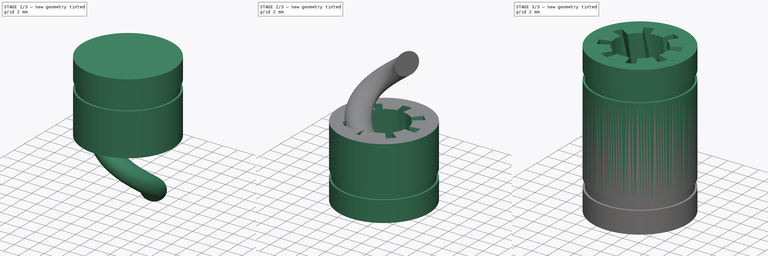
[diagram: build sequence overview — one tinted view per stage of 3, left to right]
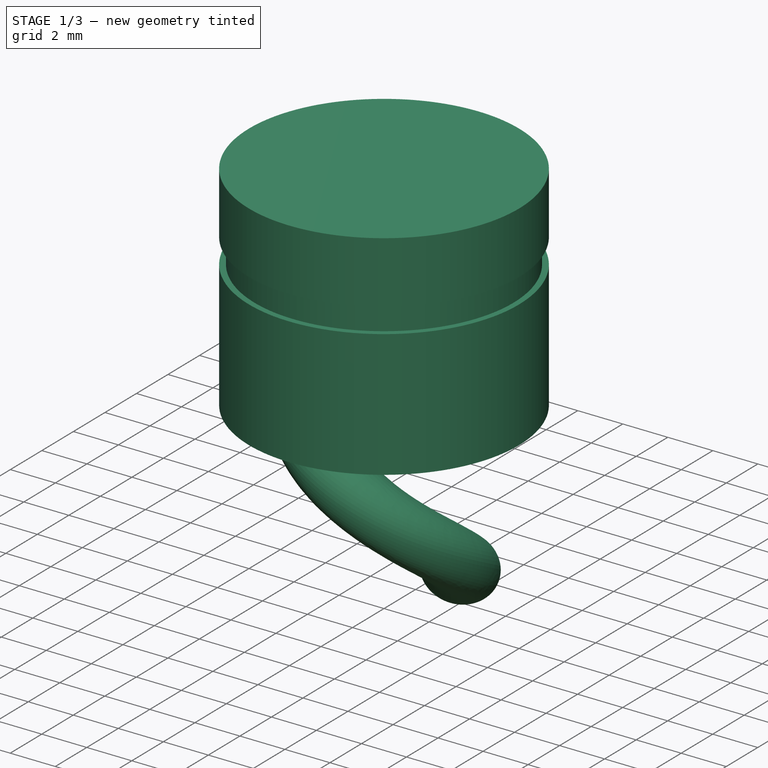
[diagram: stage 1 of 3 — iso view after this stage's code; geometry added in this stage tinted green]
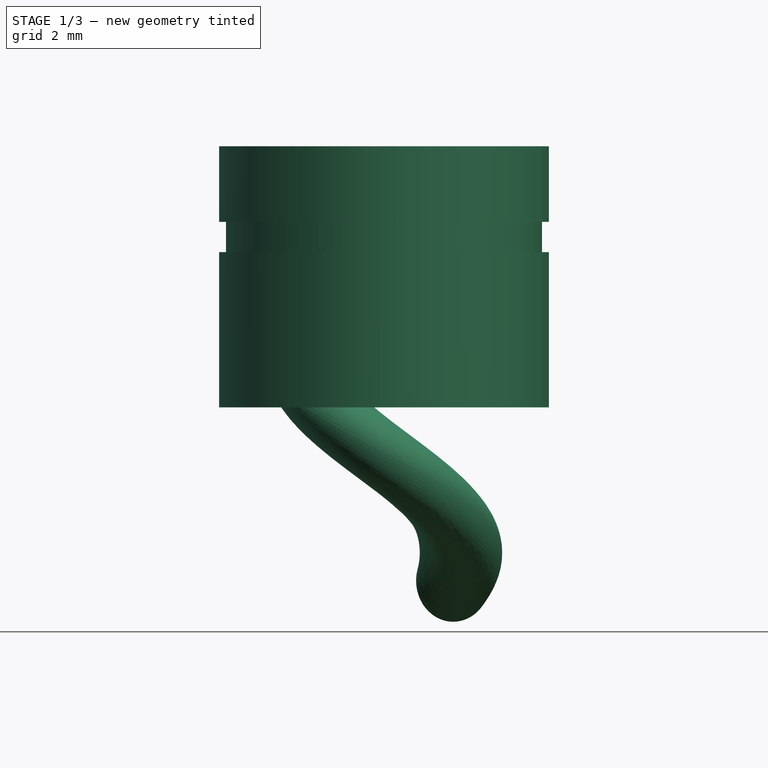
[diagram: stage 1 of 3 — front view after this stage's code; geometry added in this stage tinted green]
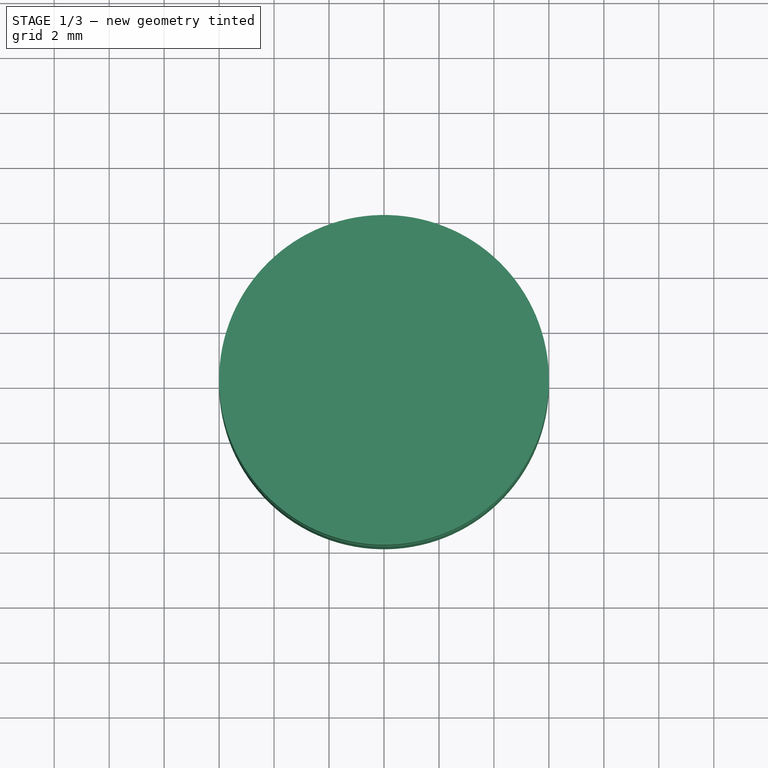
[diagram: stage 1 of 3 — top view after this stage's code; geometry added in this stage tinted green]
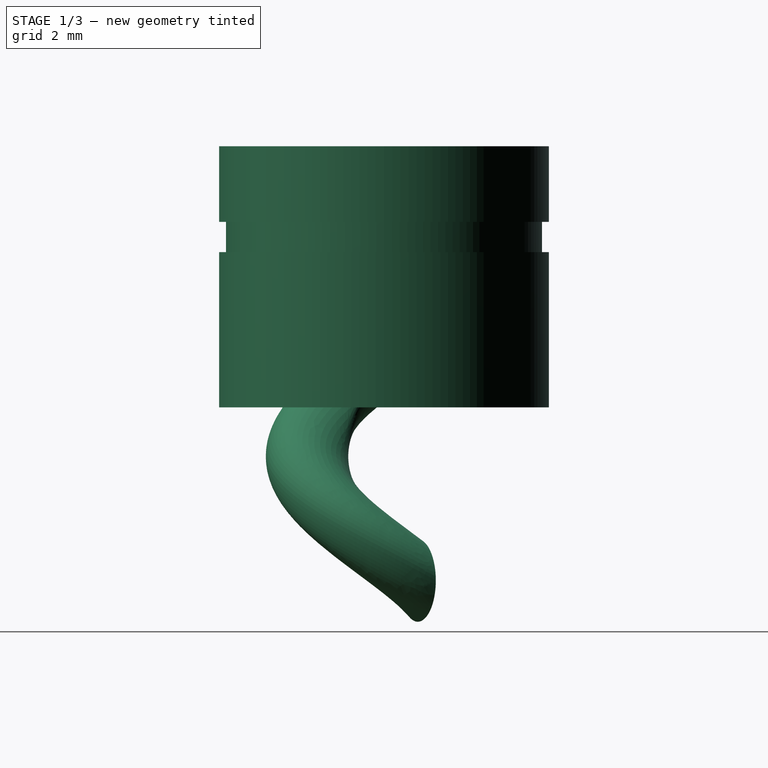
[diagram: stage 1 of 3 — right view after this stage's code; geometry added in this stage tinted green]
FCSTD DOCUMENT  (FreeCAD 0.18R15441 (Git))
Label: LM6UU_IGUS_ABS
License: All rights reserved
LicenseURL: http://en.wikipedia.org/wiki/All_rights_reserved
objects: PartDesign::Plane×6, Part::Part2DObjectPython×5, Sketcher::SketchObject×4, PartDesign::Pad×1, PartDesign::Pocket×1, Part::Helix×1, PartDesign::SubtractiveLoft×1, PartDesign::Body×1, PartDesign::FeatureBase×1, Part::MultiFuse×1, Part::Sweep×1, Part::Cut×1, App::Part×1, Part::FeaturePython×1
note: 28 computed .brp shape members not serialized (recipe doc carries the construction recipe); baked Part::Feature solids carry a one-line shape summary decoded from their .brp

FEATURE [Sketcher::SketchObject] Sketch  label="BaseSketch"
  MapMode = 5
  Support = -> [XY_Plane001]
  sketch-geometry (1):
    g0: Circle CenterX=0 CenterY=0 CenterZ=0 NormalX=0 NormalY=0 NormalZ=1 AngleXU=0 Radius=6
  constraints (2):
    c: Coincident(g0,g-1)
    c: Radius(g0) = 6
FEATURE [PartDesign::Pad] Pad  label="BasePad"
  Length = 9.5
  Length2 = 100
  Profile = -> Sketch
  Type = 0
FEATURE [PartDesign::Plane] DatumPlane  label="ClipPlane"
  AttachmentOffset = pos=(0,0,6.75) rot=(0,0,1;0rad)
  Length = 24
  MapMode = 5
  Placement = pos=(0,0,6.75) rot=(0,0,1;0rad)
  ResizeMode = 0
  Support = -> [XY_Plane001]
  Width = 24
FEATURE [Sketcher::SketchObject] Sketch001  label="ClipSketch"
  MapMode = 5
  Placement = pos=(0,0,6.75) rot=(0,0,1;0rad)
  Support = -> [DatumPlane]
  sketch-geometry (2):
    g0: Circle CenterX=0 CenterY=0 CenterZ=0 NormalX=0 NormalY=0 NormalZ=1 AngleXU=0 Radius=5.75
    g1: Circle CenterX=0 CenterY=0 CenterZ=0 NormalX=0 NormalY=0 NormalZ=1 AngleXU=0 Radius=10
  constraints (4):
    c: Coincident(g0,g-1)
    c: Coincident(g1,g0)
    c: Radius(g1) = 10
    c: Radius(g0) = 5.75
FEATURE [PartDesign::Pocket] Pocket  label="ClipPocket"
  BaseFeature = -> Pad
  Length = 1.1
  Length2 = 100
  Profile = -> Sketch001
  Type = 0
FEATURE [Part::Sweep] Sweep  label="AntiJamCutSweep"
  Frenet = true
  Sections = -> [Sketch003]
  Solid = true
  Spine = -> Helix [Edge1]
  Transition = 1
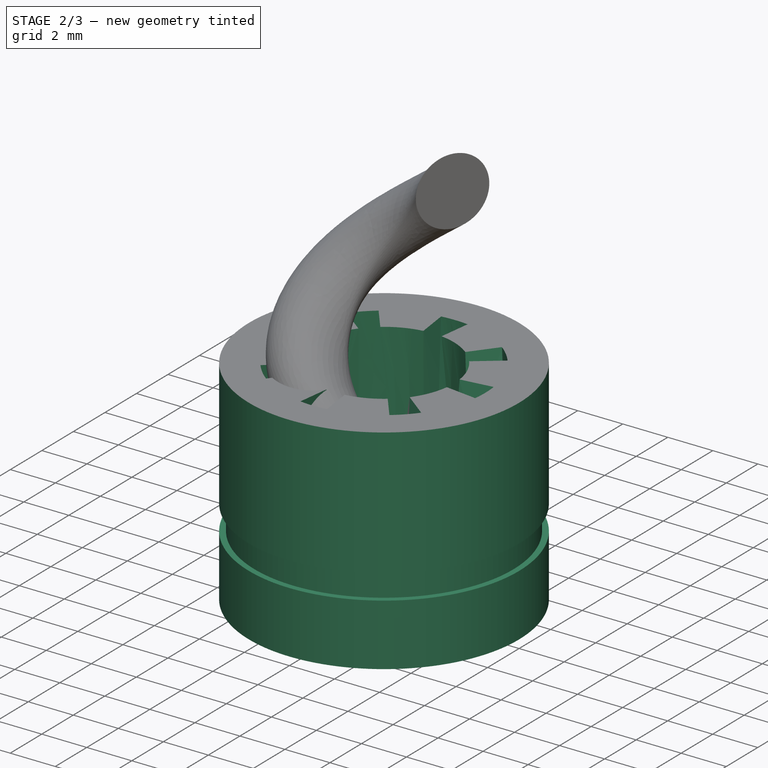
[diagram: stage 2 of 3 — iso view after this stage's code; geometry added in this stage tinted green]
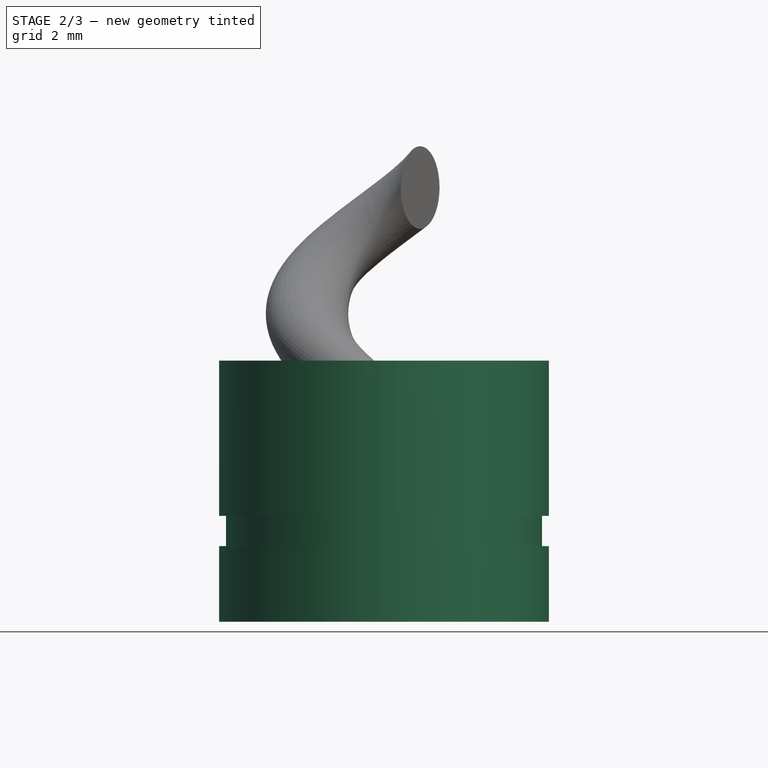
[diagram: stage 2 of 3 — front view after this stage's code; geometry added in this stage tinted green]
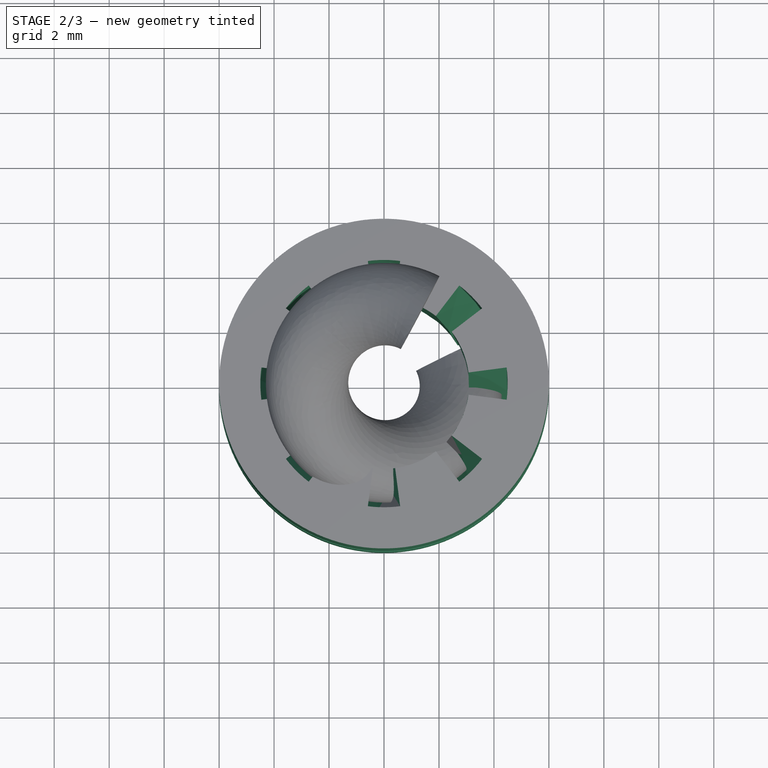
[diagram: stage 2 of 3 — top view after this stage's code; geometry added in this stage tinted green]
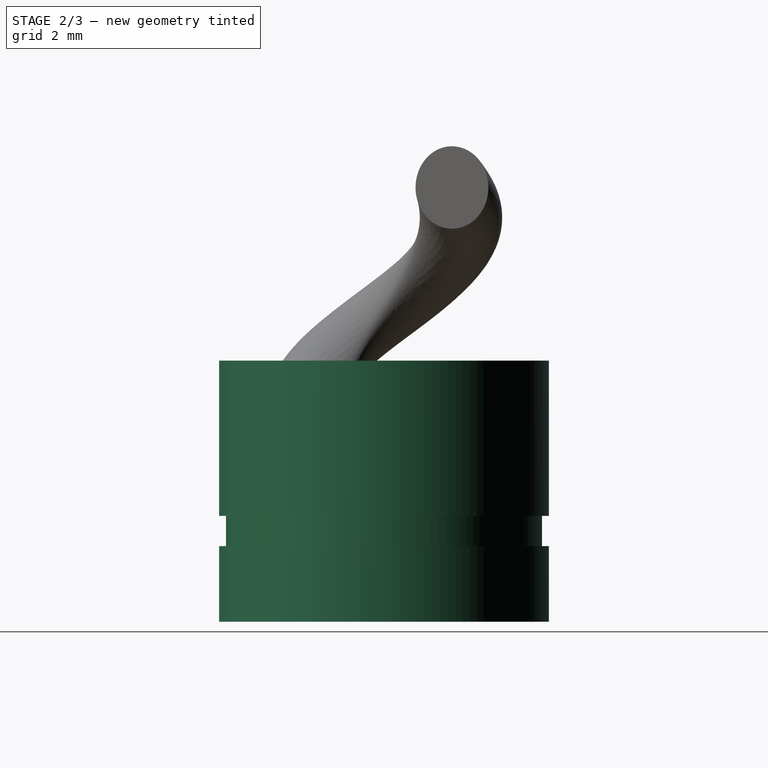
[diagram: stage 2 of 3 — right view after this stage's code; geometry added in this stage tinted green]
FEATURE [Sketcher::SketchObject] Sketch002  label="RodClipSketch"
  MapMode = 5
  Support = -> [XY_Plane001]
  sketch-geometry (49):
    g0: Circle [constr] CenterX=0 CenterY=0 CenterZ=0 NormalX=0 NormalY=0 NormalZ=1 AngleXU=0 Radius=3.1
    g1: ArcOfCircle CenterX=0 CenterY=-5e-12 CenterZ=0 NormalX=0 NormalY=0 NormalZ=1 AngleXU=0 Radius=3.1 StartAngle=1.7017 EndAngle=2.22529
    g2: ArcOfCircle CenterX=0 CenterY=-5e-12 CenterZ=0 NormalX=0 NormalY=0 NormalZ=1 AngleXU=0 Radius=3.1 StartAngle=0.916298 EndAngle=1.4399
    g3: ArcOfCircle CenterX=0 CenterY=-5e-12 CenterZ=0 NormalX=0 NormalY=0 NormalZ=1 AngleXU=0 Radius=3.1 StartAngle=2.48709 EndAngle=3.01069
    g4: ArcOfCircle CenterX=0 CenterY=-5e-12 CenterZ=0 NormalX=0 NormalY=0 NormalZ=1 AngleXU=0 Radius=3.1 StartAngle=0.1309 EndAngle=0.654498
    g5: ArcOfCircle CenterX=0 CenterY=-5e-12 CenterZ=0 NormalX=0 NormalY=0 NormalZ=1 AngleXU=0 Radius=3.1 StartAngle=5.62869 EndAngle=6.15229
    g6: ArcOfCircle CenterX=0 CenterY=-5e-12 CenterZ=0 NormalX=0 NormalY=0 NormalZ=1 AngleXU=0 Radius=3.1 StartAngle=4.84329 EndAngle=5.36689
    g7: ArcOfCircle CenterX=0 CenterY=-5e-12 CenterZ=0 NormalX=0 NormalY=0 NormalZ=1 AngleXU=0 Radius=3.1 StartAngle=4.05789 EndAngle=4.58149
    g8: ArcOfCircle CenterX=0 CenterY=-5e-12 CenterZ=0 NormalX=0 NormalY=0 NormalZ=1 AngleXU=0 Radius=3.1 StartAngle=3.27249 EndAngle=3.79609
    g9: LineSegment [constr] StartX=-0.404631 StartY=3.07348 StartZ=0 EndX=-1e-16 EndY=-5e-12 EndZ=0
    g10: LineSegment [constr] StartX=0.404631 StartY=3.07348 StartZ=0 EndX=1e-16 EndY=-5e-12 EndZ=0
    g11: LineSegment [constr] StartX=1.88716 StartY=2.4594 StartZ=0 EndX=0 EndY=-5e-12 EndZ=0
    g12: LineSegment [constr] StartX=2.4594 StartY=1.88716 StartZ=0 EndX=0 EndY=-5e-12 EndZ=0
    g13: LineSegment [constr] StartX=3.07348 StartY=0.404631 StartZ=0 EndX=0 EndY=-5e-12 EndZ=0
    g14: LineSegment [constr] StartX=3.07348 StartY=-0.404631 StartZ=0 EndX=0 EndY=-5e-12 EndZ=0
    g15: LineSegment [constr] StartX=2.4594 StartY=-1.88716 StartZ=0 EndX=0 EndY=-5e-12 EndZ=0
    g16: LineSegment [constr] StartX=1.88716 StartY=-2.4594 StartZ=0 EndX=-2e-16 EndY=-5e-12 EndZ=0
    g17: LineSegment [constr] StartX=0.404631 StartY=-3.07348 StartZ=0 EndX=0 EndY=-5e-12 EndZ=0
    g18: LineSegment [constr] StartX=-0.404631 StartY=-3.07348 StartZ=0 EndX=-1e-16 EndY=-5e-12 EndZ=0
    g19: LineSegment [constr] StartX=-1.88716 StartY=-2.4594 StartZ=0 EndX=2e-16 EndY=-5e-12 EndZ=0
    g20: LineSegment [constr] StartX=-2.4594 StartY=-1.88716 StartZ=0 EndX=0 EndY=-5.0002e-12 EndZ=0
    g21: LineSegment [constr] StartX=-3.07348 StartY=-0.404631 StartZ=0 EndX=0 EndY=-5e-12 EndZ=0
    g22: LineSegment [constr] StartX=-3.07348 StartY=0.404631 StartZ=0 EndX=0 EndY=-5e-12 EndZ=0
    g23: LineSegment [constr] StartX=-2.4594 StartY=1.88716 StartZ=0 EndX=0 EndY=-5e-12 EndZ=0
    g24: LineSegment [constr] StartX=-1.88716 StartY=2.4594 StartZ=0 EndX=0 EndY=-5e-12 EndZ=0
    g25: LineSegment StartX=-0.404631 StartY=3.07348 StartZ=0 EndX=-0.587368 EndY=4.4615 EndZ=0
    g26: LineSegment StartX=0.404631 StartY=3.07348 StartZ=0 EndX=0.587368 EndY=4.4615 EndZ=0
    g27: LineSegment StartX=1.88716 StartY=2.4594 StartZ=0 EndX=2.73943 EndY=3.57009 EndZ=0
    g28: LineSegment StartX=2.4594 StartY=1.88716 StartZ=0 EndX=3.57009 EndY=2.73943 EndZ=0
    g29: LineSegment StartX=3.07348 StartY=0.404631 StartZ=0 EndX=4.4615 EndY=0.587368 EndZ=0
    g30: LineSegment StartX=3.07348 StartY=-0.404631 StartZ=0 EndX=4.4615 EndY=-0.587368 EndZ=0
    g31: LineSegment StartX=2.4594 StartY=-1.88716 StartZ=0 EndX=3.57009 EndY=-2.73943 EndZ=0
    g32: LineSegment StartX=1.88716 StartY=-2.4594 StartZ=0 EndX=2.73943 EndY=-3.57009 EndZ=0
    g33: LineSegment StartX=0.404631 StartY=-3.07348 StartZ=0 EndX=0.587368 EndY=-4.4615 EndZ=0
    g34: LineSegment StartX=-0.404631 StartY=-3.07348 StartZ=0 EndX=-0.587368 EndY=-4.4615 EndZ=0
    g35: LineSegment StartX=-1.88716 StartY=-2.4594 StartZ=0 EndX=-2.73943 EndY=-3.57009 EndZ=0
    g36: LineSegment StartX=-2.4594 StartY=-1.88716 StartZ=0 EndX=-3.57009 EndY=-2.73943 EndZ=0
    g37: LineSegment StartX=-3.07348 StartY=-0.404631 StartZ=0 EndX=-4.4615 EndY=-0.587368 EndZ=0
    g38: LineSegment StartX=-3.07348 StartY=0.404631 StartZ=0 EndX=-4.4615 EndY=0.587368 EndZ=0
    g39: LineSegment StartX=-2.4594 StartY=1.88716 StartZ=0 EndX=-3.57009 EndY=2.73943 EndZ=0
    g40: LineSegment StartX=-1.88716 StartY=2.4594 StartZ=0 EndX=-2.73943 EndY=3.57009 EndZ=0
    g41: ArcOfCircle CenterX=0 CenterY=-5e-12 CenterZ=0 NormalX=0 NormalY=0 NormalZ=1 AngleXU=0 Radius=4.5 StartAngle=1.4399 EndAngle=1.7017
    g42: ArcOfCircle CenterX=0 CenterY=-5e-12 CenterZ=0 NormalX=0 NormalY=0 NormalZ=1 AngleXU=0 Radius=4.5 StartAngle=0.654498 EndAngle=0.916298
    g43: ArcOfCircle CenterX=0 CenterY=-5e-12 CenterZ=0 NormalX=0 NormalY=0 NormalZ=1 AngleXU=0 Radius=4.5 StartAngle=6.15229 EndAngle=6.41409
    g44: ArcOfCircle CenterX=0 CenterY=-5e-12 CenterZ=0 NormalX=0 NormalY=0 NormalZ=1 AngleXU=0 Radius=4.5 StartAngle=5.36689 EndAngle=5.62869
    g45: ArcOfCircle CenterX=0 CenterY=-5e-12 CenterZ=0 NormalX=0 NormalY=0 NormalZ=1 AngleXU=0 Radius=4.5 StartAngle=4.58149 EndAngle=4.84329
    g46: ArcOfCircle CenterX=0 CenterY=-5e-12 CenterZ=0 NormalX=0 NormalY=0 NormalZ=1 AngleXU=0 Radius=4.5 StartAngle=3.79609 EndAngle=4.05789
    g47: ArcOfCircle CenterX=0 CenterY=-5e-12 CenterZ=0 NormalX=0 NormalY=0 NormalZ=1 AngleXU=0 Radius=4.5 StartAngle=3.01069 EndAngle=3.27249
    g48: ArcOfCircle CenterX=0 CenterY=-5e-12 CenterZ=0 NormalX=0 NormalY=0 NormalZ=1 AngleXU=0 Radius=4.5 StartAngle=2.22529 EndAngle=2.48709
  constraints (123):
    c: Coincident(g0,g-1)
    c: Radius(g0) = 3.1
    c: PointOnObject(g1,g0)
    c: Coincident(g2,g1)
    c: Coincident(g3,g1)
    c: PointOnObject(g3,g0)
    c: Coincident(g4,g1)
    c: Coincident(g5,g1)
    c: Coincident(g6,g1)
    c: Coincident(g7,g1)
    c: Coincident(g8,g1)
    c: Coincident(g9,g1)
    c: Coincident(g9,g1)
    c: Coincident(g10,g2)
    c: Coincident(g10,g1)
    c: Coincident(g11,g2)
    c: Coincident(g11,g1)
    c: Coincident(g12,g4)
    c: Coincident(g12,g1)
    c: Coincident(g13,g4)
    c: Coincident(g13,g1)
    c: Coincident(g14,g5)
    c: Coincident(g14,g1)
    c: Coincident(g15,g5)
    c: Coincident(g15,g1)
    c: Coincident(g16,g6)
    c: Coincident(g16,g1)
    c: Coincident(g17,g6)
    c: Coincident(g17,g1)
    c: Coincident(g18,g7)
    c: Coincident(g18,g1)
    c: Coincident(g19,g7)
    c: Coincident(g19,g1)
    c: Coincident(g20,g8)
    c: Coincident(g20,g1)
    c: Coincident(g21,g8)
    c: Coincident(g21,g1)
    c: Coincident(g22,g3)
    c: Coincident(g22,g1)
    c: Coincident(g23,g3)
    c: Coincident(g23,g1)
    c: Coincident(g24,g1)
    c: Coincident(g24,g1)
    c: Coincident(g25,g1)
    c: Coincident(g26,g2)
    c: Coincident(g27,g2)
    c: Coincident(g28,g4)
    c: Coincident(g29,g4)
    c: Coincident(g30,g5)
    c: Coincident(g31,g5)
    c: Coincident(g32,g6)
    c: Coincident(g33,g6)
    c: Coincident(g34,g7)
    c: Coincident(g35,g7)
    c: Coincident(g36,g8)
    c: Coincident(g37,g8)
    c: Coincident(g38,g3)
    c: Coincident(g39,g3)
    c: Coincident(g40,g1)
    c: Parallel(g25,g9)
    c: Parallel(g26,g10)
    c: Parallel(g27,g11)
    c: Parallel(g28,g12)
    c: Parallel(g29,g13)
    c: Parallel(g30,g14)
    c: Parallel(g31,g15)
    c: Parallel(g32,g16)
    c: Parallel(g33,g17)
    c: Parallel(g34,g18)
    c: Parallel(g35,g19)
    c: Parallel(g36,g20)
    c: Parallel(g37,g21)
    c: Parallel(g38,g22)
    c: Parallel(g39,g23)
    c: Parallel(g40,g24)
    c: Symmetric(g2,g1,g-2)
    c: Symmetric(g1,g7,g-1)
    c: Symmetric(g2,g6,g-1)
    c: Symmetric(g2,g6,g-1)
    c: Symmetric(g1,g7,g-1)
    c: Symmetric(g2,g1,g-2)
    c: Symmetric(g4,g3,g-2)
    c: Symmetric(g3,g8,g-1)
    c: Symmetric(g4,g5,g-1)
    c: Symmetric(g4,g3,g-2)
    c: Symmetric(g3,g8,g-1)
    c: Symmetric(g5,g4,g-1)
    c: Coincident(g41,g1)
    c: Coincident(g41,g25)
    c: Coincident(g41,g26)
    c: Coincident(g42,g1)
    c: Coincident(g42,g27)
    c: Coincident(g42,g28)
    c: Coincident(g43,g1)
    c: Coincident(g43,g29)
    c: Coincident(g43,g30)
    c: Coincident(g44,g1)
    c: Coincident(g44,g31)
    c: Coincident(g44,g32)
    c: Coincident(g45,g1)
    c: Coincident(g45,g33)
    c: Coincident(g45,g34)
    c: Coincident(g46,g1)
    c: Coincident(g46,g35)
    c: Coincident(g46,g36)
    c: Coincident(g47,g1)
    c: Coincident(g47,g37)
    c: Coincident(g47,g38)
    c: Coincident(g48,g1)
    c: Coincident(g48,g39)
    c: Coincident(g48,g40)
    c: Equal(g40,g26)
    c: Equal(g26,g28)
    c: Equal(g28,g30)
    c: Equal(g30,g32)
    c: Equal(g32,g34)
    c: Equal(g34,g36)
    c: Equal(g36,g38)
    c: Radius(g42) = 4.5
    c: Angle(g42) = 0.261799
    c: Angle(g41) = 0.261799
    c: Angle(g2) = 0.523599
    c: Angle(g4) = 0.523599
FEATURE [Part::Helix] Helix  label="AntiJamHelixPath"
  Angle = 0
  AttacherType = Attacher::AttachEngine3D
  Height = 12.6
  LocalCoord = 1
  Pitch = 14
  Placement = pos=(0,0,-6.3) rot=(0,0,1;0.453786rad)
  Radius = 2.8
  Style = 1
FEATURE [Sketcher::SketchObject] Sketch003  label="AntiJamHelixSectionSketch"
  ExternalGeometry = -> [Helix]
  MapMode = 3
  Placement = pos=(0,0,-6.3) rot=(0.950615,0.219467,0.219467;1.62142rad)
  Support = -> [Helix]
  sketch-geometry (1):
    g0: Circle CenterX=2.8 CenterY=0 CenterZ=0 NormalX=0 NormalY=0 NormalZ=1 AngleXU=0 Radius=1.5
  constraints (2):
    c: Coincident(g0,g-3)
    c: Radius(g0) = 1.5
FEATURE [PartDesign::Plane] DatumPlane001  label="RodClipPlane_1"
  AttachmentOffset = pos=(0,0,1.9) rot=(0,0,1;0.07854rad)
  Length = 25.809
  MapMode = 5
  Placement = pos=(0,0,1.9) rot=(0,0,1;0.07854rad)
  ResizeMode = 0
  Support = -> [XY_Plane001]
  Width = 25.809
FEATURE [PartDesign::Plane] DatumPlane002  label="RodClipPlane_2"
  AttachmentOffset = pos=(0,0,3.8) rot=(0,0,1;0.15708rad)
  Length = 27.4589
  MapMode = 5
  Placement = pos=(0,0,3.8) rot=(0,0,1;0.15708rad)
  ResizeMode = 0
  Support = -> [XY_Plane001]
  Width = 27.4589
FEATURE [PartDesign::Plane] DatumPlane003  label="RodClipPlane_3"
  AttachmentOffset = pos=(0,0,5.7) rot=(0,0,1;0.235619rad)
  Length = 28.9396
  MapMode = 5
  Placement = pos=(0,0,5.7) rot=(0,0,1;0.235619rad)
  ResizeMode = 0
  Support = -> [XY_Plane001]
  Width = 28.9396
FEATURE [PartDesign::Plane] DatumPlane004  label="RodClipPlane_4"
  AttachmentOffset = pos=(0,0,7.6) rot=(0,0,1;0.314159rad)
  Length = 30.2418
  MapMode = 5
  Placement = pos=(0,0,7.6) rot=(0,0,1;0.314159rad)
  ResizeMode = 0
  Support = -> [XY_Plane001]
  Width = 30.2418
FEATURE [PartDesign::Plane] DatumPlane005  label="RodClipPlane_5"
  AttachmentOffset = pos=(0,0,9.5) rot=(0,0,1;0.392699rad)
  Length = 31.3575
  MapMode = 5
  Placement = pos=(0,0,9.5) rot=(0,0,1;0.392699rad)
  ResizeMode = 0
  Support = -> [XY_Plane001]
  Width = 31.3575
FEATURE [Part::Part2DObjectPython] Clone2D  label="RodClipSketch_1"  # Draft 2D object (typed FeaturePython)
  Fuse = false
  MapMode = 5
  Objects = -> [Sketch002]
  Placement = pos=(0,0,1.9) rot=(0,0,1;0.07854rad)
  Scale = (1,1,1)
  Support = -> [DatumPlane001]
FEATURE [Part::Part2DObjectPython] Clone2D001  label="RodClipSketch_2"  # Draft 2D object (typed FeaturePython)
  Fuse = false
  MapMode = 5
  Objects = -> [Sketch002]
  Placement = pos=(0,0,3.8) rot=(0,0,1;0.15708rad)
  Scale = (1,1,1)
  Support = -> [DatumPlane002]
FEATURE [Part::Part2DObjectPython] Clone2D002  label="RodClipSketch_3"  # Draft 2D object (typed FeaturePython)
  Fuse = false
  MapMode = 5
  Objects = -> [Sketch002]
  Placement = pos=(0,0,5.7) rot=(0,0,1;0.235619rad)
  Scale = (1,1,1)
  Support = -> [DatumPlane003]
FEATURE [Part::Part2DObjectPython] Clone2D003  label="RodClipSketch_4"  # Draft 2D object (typed FeaturePython)
  Fuse = false
  MapMode = 5
  Objects = -> [Sketch002]
  Placement = pos=(0,0,7.6) rot=(0,0,1;0.314159rad)
  Scale = (1,1,1)
  Support = -> [DatumPlane004]
FEATURE [Part::Part2DObjectPython] Clone2D004  label="RodClipSketch_5"  # Draft 2D object (typed FeaturePython)
  Fuse = false
  MapMode = 5
  Objects = -> [Sketch002]
  Placement = pos=(0,0,9.5) rot=(0,0,1;0.392699rad)
  Scale = (1,1,1)
  Support = -> [DatumPlane005]
FEATURE [PartDesign::SubtractiveLoft] SubtractiveLoft  label="RodClipSubtractiveLoft"
  BaseFeature = -> Pocket
  Closed = false
  Profile = -> Sketch002
  Ruled = false
  Sections = -> [Clone2D,Clone2D001,Clone2D002,Clone2D003,Clone2D004]
FEATURE [PartDesign::Body] Body  label="BearingBody"
  Group = -> [Sketch,Pad,DatumPlane,Sketch001,Pocket,Sketch002,DatumPlane001,DatumPlane002,DatumPlane003,DatumPlane004,DatumPlane005,Clone2D,Clone2D001,Clone2D002,Clone2D003,Clone2D004,SubtractiveLoft]
  Origin = -> Origin001
  Tip = -> SubtractiveLoft
FEATURE [PartDesign::FeatureBase] Clone  label="BearingBodyClone"
  BaseFeature = -> Body
  Placement = pos=(0,0,0) rot=(0,1,0;3.14159rad)
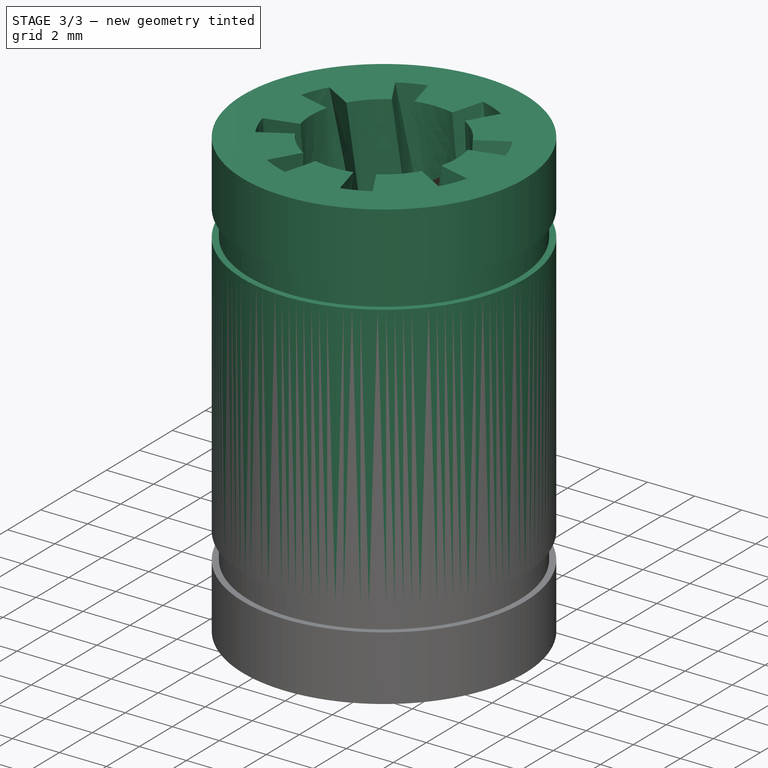
[diagram: stage 3 of 3 — iso view after this stage's code; geometry added in this stage tinted green]
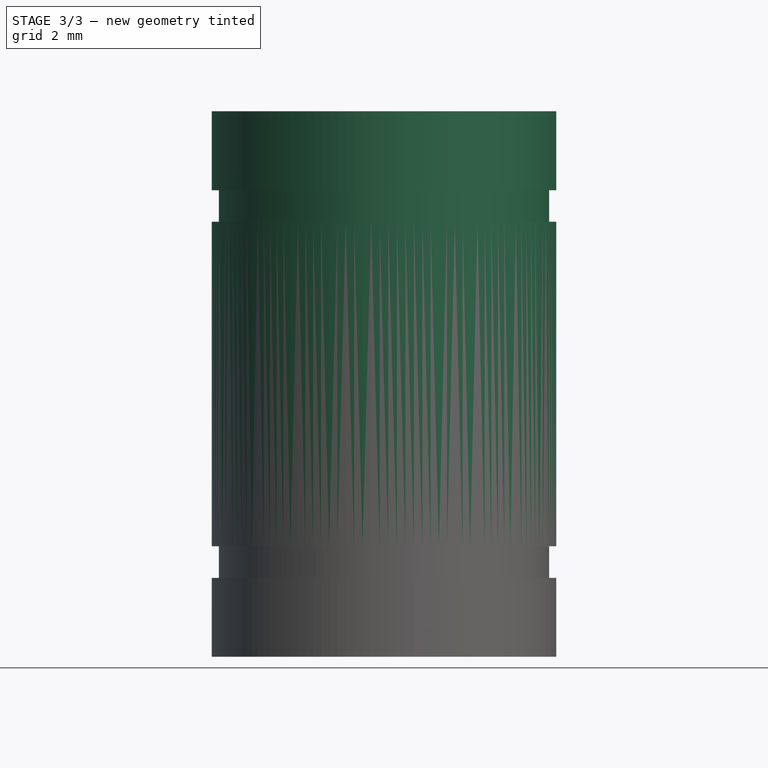
[diagram: stage 3 of 3 — front view after this stage's code; geometry added in this stage tinted green]
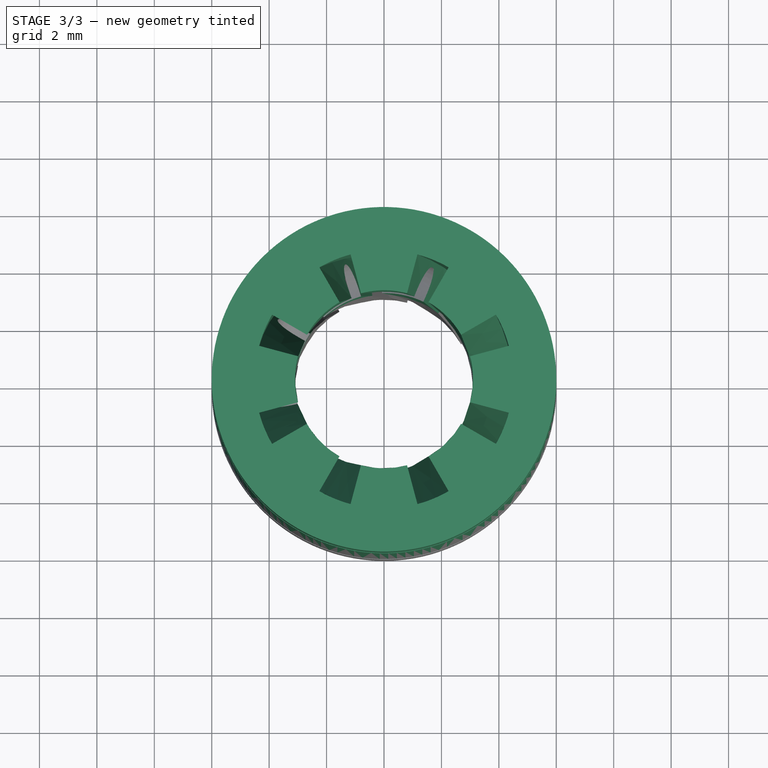
[diagram: stage 3 of 3 — top view after this stage's code; geometry added in this stage tinted green]
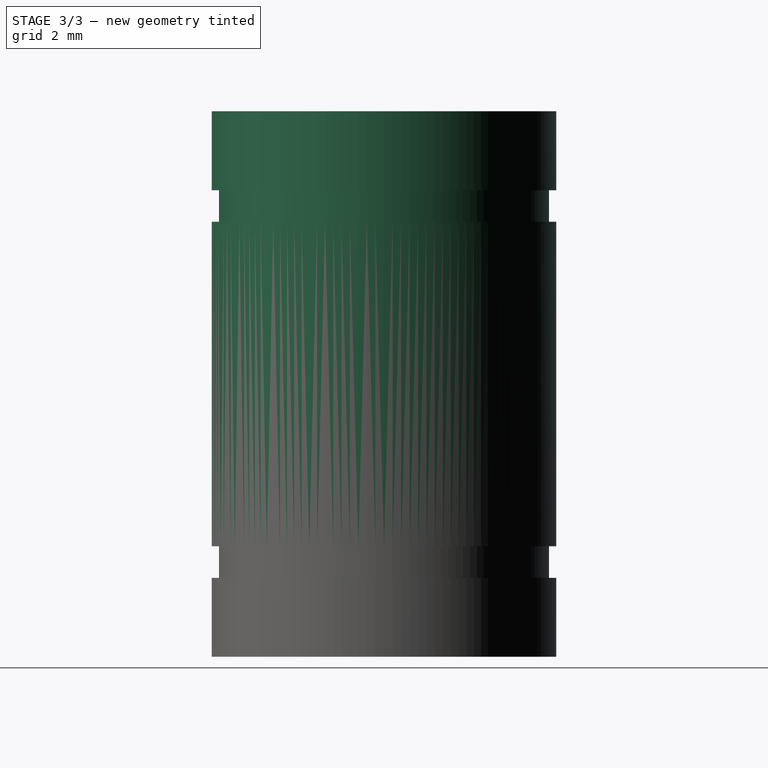
[diagram: stage 3 of 3 — right view after this stage's code; geometry added in this stage tinted green]
FEATURE [Part::MultiFuse] Fusion  label="BearingFusion"
  Shapes = -> [Body,Clone]
FEATURE [Part::Cut] Cut  label="BearingCut"
  Base = -> Fusion
  Tool = -> Sweep
FEATURE [App::Part] Part  label="BearingPart"
  Group = -> [Body,Clone,Sketch003,Helix,Fusion,Sweep,Cut]
  License = CC BY 3.0
  LicenseURL = http://creativecommons.org/licenses/by/3.0/
  Origin = -> Origin
FEATURE [Part::FeaturePython] refine  label="BearingCut_Refined"  # WARN: FeaturePython — macro-defined, semantics opaque (R4)
  Base = -> Cut
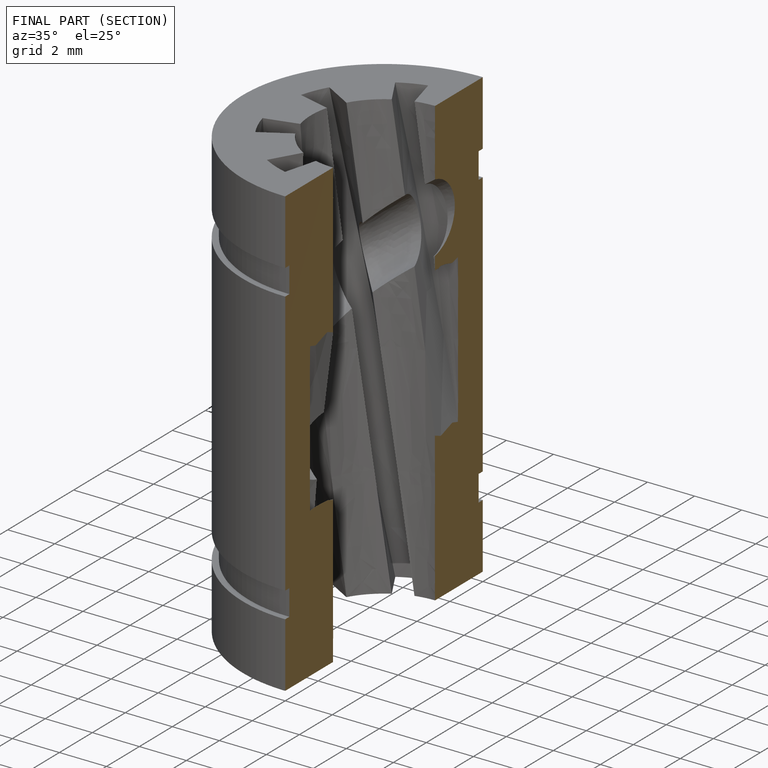
[diagram: finished part — half-section view (interior)]
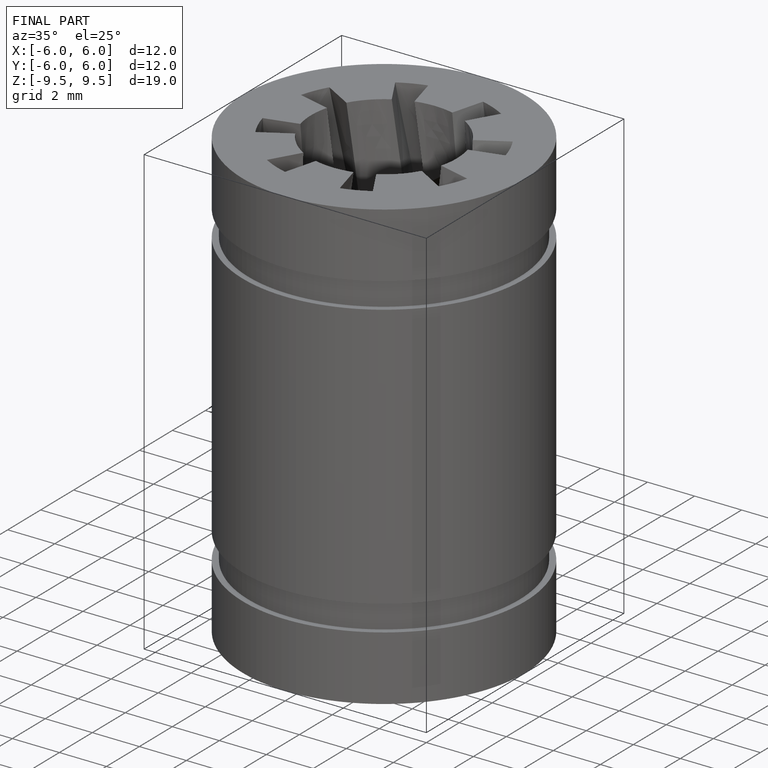
[diagram: finished part — iso view with bounding-box wireframe]
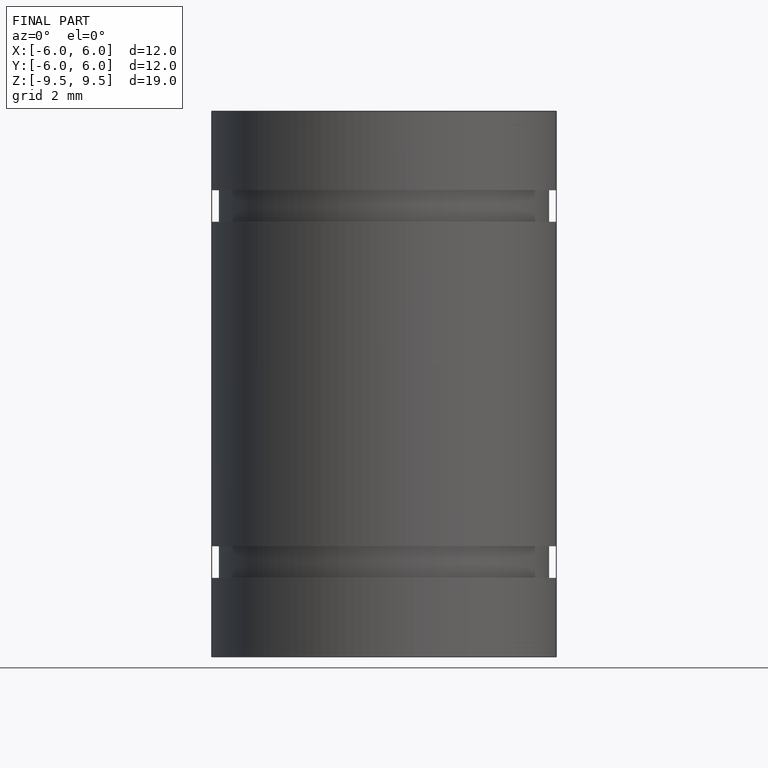
[diagram: finished part — front view with bounding-box wireframe]
